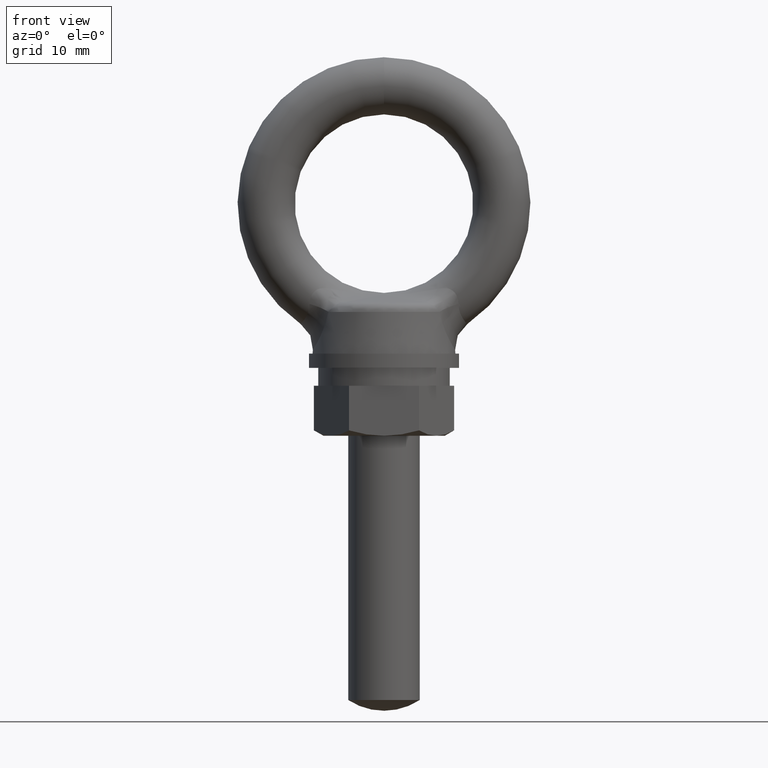
[diagram: clean part render]
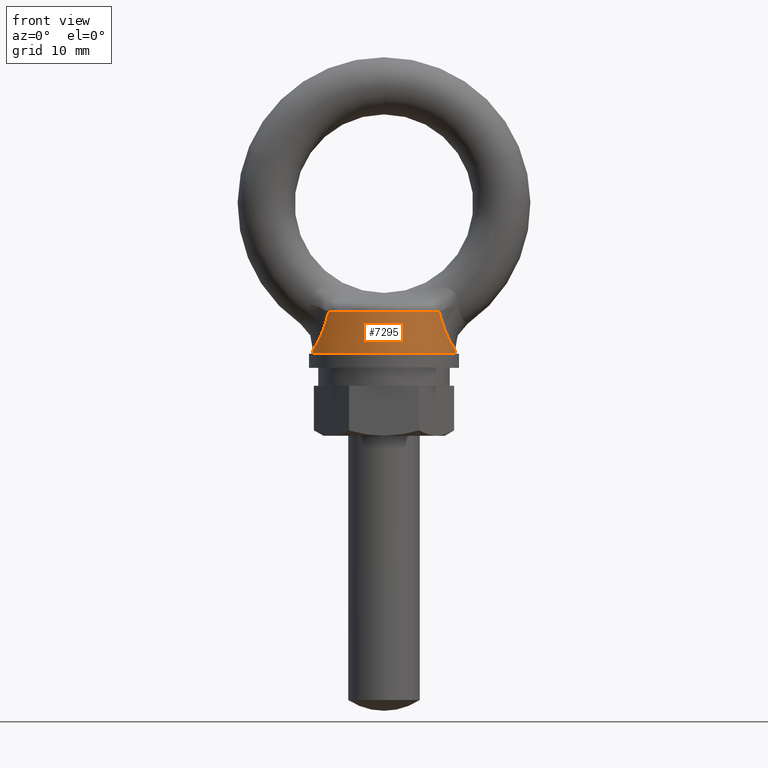
[diagram: same view with one face highlighted and labeled with its STEP entity id]
A machine part, front view. The second image highlights one B-rep face of the part: STEP entity #7295.
In plain terms, the highlighted conical surface has half-angle 5 deg.
Its self-contained STEP definition (entity closure, byte-faithful):
#2065 = CARTESIAN_POINT ( 'NONE',  ( -9.955885993554414200, -2.028742894275622300E-012, -20.49578796082059300 ) ) ;
#2066 = CARTESIAN_POINT ( 'NONE',  ( -9.955885993554327100, -0.3657275240793376200, -20.49578796082045100 ) ) ;
#2067 = CARTESIAN_POINT ( 'NONE',  ( -9.932544546647314100, -0.7244296777551357800, -20.45828552777055600 ) ) ;
#2068 = CARTESIAN_POINT ( 'NONE',  ( -9.865353101718785200, -1.252486508463236400, -20.34803947824609300 ) ) ;
#2069 = CARTESIAN_POINT ( 'NONE',  ( -9.837333292063071600, -1.427980581006030200, -20.30181331741691500 ) ) ;
#2070 = CARTESIAN_POINT ( 'NONE',  ( -9.771941598418415300, -1.769612213719068800, -20.19257703551616200 ) ) ;
#2173 = CARTESIAN_POINT ( 'NONE',  ( -7.924951897885458500, -5.331774767794621000, -15.86430205083240900 ) ) ;
#2174 = CARTESIAN_POINT ( 'NONE',  ( -7.837173701022173600, -5.405870336583355100, -15.51749412337730400 ) ) ;
#2176 = B_SPLINE_CURVE_WITH_KNOTS ( 'NONE', 3,
 ( #2189, #2174, #2173, #2226, #2225, #2224, #2223, #2222, #2221, #2220, #2219, #2218, #2217, #2216, #2215, #2214, #2070, #2069, #2068, #2067, #2066, #2065 ),
 .UNSPECIFIED., .F., .F.,
 ( 4, 2, 2, 2, 2, 2, 2, 2, 2, 2, 4 ),
 ( 0.0000000000000000000, 0.001092146086648861700, 0.002184292173297723400, 0.003276438259946585100, 0.004368584346595446800, 0.004914657389919877900, 0.005460730433244308100, 0.006552876519893175400, 0.007098949563217606500, 0.007645022606542037500, 0.008737168693190898800 ),
 .UNSPECIFIED. ) ;
#2189 = CARTESIAN_POINT ( 'NONE',  ( -7.760410120876260400, -5.461485613272089700, -15.16582361561554900 ) ) ;
#2214 = CARTESIAN_POINT ( 'NONE',  ( -9.734804380016205600, -1.935030454429257600, -20.12995872626705600 ) ) ;
#2215 = CARTESIAN_POINT ( 'NONE',  ( -9.611922188606127900, -2.416341255347066700, -19.91948627331188200 ) ) ;
#2216 = CARTESIAN_POINT ( 'NONE',  ( -9.514747698480519500, -2.717406389784828400, -19.74921834025179000 ) ) ;
#2217 = CARTESIAN_POINT ( 'NONE',  ( -9.351997443421655700, -3.141460765879729800, -19.44977693694196900 ) ) ;
#2218 = CARTESIAN_POINT ( 'NONE',  ( -9.294620810465218600, -3.278717372852791600, -19.34199790753970700 ) ) ;
#2219 = CARTESIAN_POINT ( 'NONE',  ( -9.177905272989097100, -3.538079861692929700, -19.11676631391539200 ) ) ;
#2220 = CARTESIAN_POINT ( 'NONE',  ( -9.118310566304362700, -3.660950575487504900, -18.99886489947441600 ) ) ;
#2221 = CARTESIAN_POINT ( 'NONE',  ( -8.937439847729324400, -4.010802158584025900, -18.62998075006827700 ) ) ;
#2222 = CARTESIAN_POINT ( 'NONE',  ( -8.814099166400556100, -4.219132670111715600, -18.36390273650750500 ) ) ;
#2223 = CARTESIAN_POINT ( 'NONE',  ( -8.569500128992782400, -4.591127687307208700, -17.79229638933241000 ) ) ;
#2224 = CARTESIAN_POINT ( 'NONE',  ( -8.448650898237595200, -4.753804588081175500, -17.48708771104530200 ) ) ;
#2225 = CARTESIAN_POINT ( 'NONE',  ( -8.223497949102352300, -5.029049508848709500, -16.85967545764327700 ) ) ;
#2226 = CARTESIAN_POINT ( 'NONE',  ( -8.118040680862566900, -5.143364533151506100, -16.53487376259072400 ) ) ;
#3484 = CARTESIAN_POINT ( 'NONE',  ( -7.760410120876260400, -5.461485613272089700, -15.16582361561554900 ) ) ;
#4707 = DIRECTION ( 'NONE',  ( 1.000000000000000000, 0.0000000000000000000, 0.0000000000000000000 ) ) ;
#4708 = DIRECTION ( 'NONE',  ( 0.0000000000000000000, 0.0000000000000000000, -1.000000000000000000 ) ) ;
#4709 = CARTESIAN_POINT ( 'NONE',  ( 0.0000000000000000000, 0.0000000000000000000, -15.16582361561554900 ) ) ;
#4710 = AXIS2_PLACEMENT_3D ( 'NONE', #4709, #4708, #4707 ) ;
#4711 = CIRCLE ( 'NONE', #4710, 9.489562178950970800 ) ;
#6238 = CARTESIAN_POINT ( 'NONE',  ( 8.935146831457398500, -4.015134655598919800, -18.62525502555936900 ) ) ;
#6239 = CARTESIAN_POINT ( 'NONE',  ( 9.179693954334842600, -3.542321241001758400, -19.12410464747375700 ) ) ;
#6240 = CARTESIAN_POINT ( 'NONE',  ( 9.296707669799948400, -3.284952945513295300, -19.34794736367198500 ) ) ;
#6241 = CARTESIAN_POINT ( 'NONE',  ( 9.511943043456110300, -2.725272241202753700, -19.74415914991467200 ) ) ;
#6242 = CARTESIAN_POINT ( 'NONE',  ( 9.610782753211859500, -2.420902231676887300, -19.91753953609090600 ) ) ;
#6243 = CARTESIAN_POINT ( 'NONE',  ( 9.777200841859619000, -1.768871823722089500, -20.20257043445539200 ) ) ;
#6244 = CARTESIAN_POINT ( 'NONE',  ( 9.842620695228824000, -1.429890596074381500, -20.31073325029626600 ) ) ;
#6245 = CARTESIAN_POINT ( 'NONE',  ( 9.909598342861130500, -0.9053784728590519300, -20.42063963923516200 ) ) ;
#6246 = CARTESIAN_POINT ( 'NONE',  ( 9.926770315475065900, -0.7276484838180348200, -20.44857143745197100 ) ) ;
#6247 = CARTESIAN_POINT ( 'NONE',  ( 9.949965243970382300, -0.3660831602386967500, -20.48622735366315000 ) ) ;
#6248 = CARTESIAN_POINT ( 'NONE',  ( 9.955885993554458600, -0.1824289259746165200, -20.49578796082066700 ) ) ;
#6249 = CARTESIAN_POINT ( 'NONE',  ( 9.955885993554414200, 2.030656532070525200E-012, -20.49578796082059300 ) ) ;
#6256 = CARTESIAN_POINT ( 'NONE',  ( 0.0000000000000000000, 0.0000000000000000000, -14.00000164107894200 ) ) ;
#6293 = DIRECTION ( 'NONE',  ( -1.000000000000000000, 0.0000000000000000000, 0.0000000000000000000 ) ) ;
#6294 = DIRECTION ( 'NONE',  ( 0.0000000000000000000, 0.0000000000000000000, -1.000000000000000000 ) ) ;
#6295 = CARTESIAN_POINT ( 'NONE',  ( 0.0000000000000000000, 0.0000000000000000000, -21.00000000000000000 ) ) ;
#6296 = AXIS2_PLACEMENT_3D ( 'NONE', #6295, #6294, #6293 ) ;
#6297 = CIRCLE ( 'NONE', #6296, 10.00000000000000000 ) ;
#6311 = CARTESIAN_POINT ( 'NONE',  ( -10.00000000000000000, 0.0000000000000000000, -21.00000000000000000 ) ) ;
#6329 = CARTESIAN_POINT ( 'NONE',  ( 10.00000000000000000, 1.224606353822377100E-015, -21.00000000000000000 ) ) ;
#6330 = DIRECTION ( 'NONE',  ( 0.08715803485720417800, 1.067342832728044500E-017, -0.9961944975554876100 ) ) ;
#6331 = VECTOR ( 'NONE', #6330, 1000.000000000000100 ) ;
#6332 = CARTESIAN_POINT ( 'NONE',  ( 9.387563269557979600, 1.149606962681027100E-015, -14.00000164107894200 ) ) ;
#6333 = LINE ( 'NONE', #6332, #6331 ) ;
#6337 = CARTESIAN_POINT ( 'NONE',  ( 7.760410120876260400, -5.461485613272089700, -15.16582361561554900 ) ) ;
#6338 = CARTESIAN_POINT ( 'NONE',  ( 7.913704483389681200, -5.350423722075756700, -15.86809813433437100 ) ) ;
#6339 = CARTESIAN_POINT ( 'NONE',  ( 8.108247238750781300, -5.169776252009127900, -16.53817346479218400 ) ) ;
#6340 = CARTESIAN_POINT ( 'NONE',  ( 8.448589367295010500, -4.753961759298617200, -17.48708710548955400 ) ) ;
#6341 = CARTESIAN_POINT ( 'NONE',  ( 8.568329162953711300, -4.592686322834911300, -17.78932410250962100 ) ) ;
#6342 = CARTESIAN_POINT ( 'NONE',  ( 8.811383033758465500, -4.223482147632422500, -18.35778747662589800 ) ) ;
#6375 = CARTESIAN_POINT ( 'NONE',  ( -9.955885993554414200, -2.028742894275622300E-012, -20.49578796082059300 ) ) ;
#6376 = DIRECTION ( 'NONE',  ( -0.08715803485720417800, 0.0000000000000000000, -0.9961944975554876100 ) ) ;
#6377 = VECTOR ( 'NONE', #6376, 1000.000000000000100 ) ;
#6378 = CARTESIAN_POINT ( 'NONE',  ( -9.387563269557979600, 0.0000000000000000000, -14.00000164107894200 ) ) ;
#6379 = LINE ( 'NONE', #6378, #6377 ) ;
#6410 = B_SPLINE_CURVE_WITH_KNOTS ( 'NONE', 3,
 ( #6249, #6248, #6247, #6246, #6245, #6244, #6243, #6242, #6241, #6240, #6239, #6238, #6342, #6341, #6340, #6339, #6338, #6337 ),
 .UNSPECIFIED., .F., .F.,
 ( 4, 2, 2, 2, 2, 2, 2, 2, 4 ),
 ( 0.008737168693190888400, 0.009281943216518354400, 0.009826717739845822200, 0.01091626678650075300, 0.01200581583315568500, 0.01309536487981061700, 0.01418491392646554900, 0.01527446297312048100, 0.01745356106643034700 ),
 .UNSPECIFIED. ) ;
#6411 = CARTESIAN_POINT ( 'NONE',  ( 7.760410120876260400, -5.461485613272089700, -15.16582361561554900 ) ) ;
#6412 = CARTESIAN_POINT ( 'NONE',  ( 9.955885993554414200, 2.030656532070525200E-012, -20.49578796082059300 ) ) ;
#6438 = FACE_OUTER_BOUND ( 'NONE', #7252, .T. ) ;
#6441 = DIRECTION ( 'NONE',  ( -1.000000000000000000, 0.0000000000000000000, 0.0000000000000000000 ) ) ;
#6442 = DIRECTION ( 'NONE',  ( 0.0000000000000000000, 0.0000000000000000000, -1.000000000000000000 ) ) ;
#6443 = AXIS2_PLACEMENT_3D ( 'NONE', #6256, #6442, #6441 ) ;
#6444 = CONICAL_SURFACE ( 'NONE', #6443, 9.387563269557979600, 0.08726876346498016500 ) ;
#7109 = ORIENTED_EDGE ( 'NONE', *, *, #7268, .T. ) ;
#7110 = ORIENTED_EDGE ( 'NONE', *, *, #7325, .F. ) ;
#7134 = EDGE_CURVE ( 'NONE', #7164, #7269, #2176, .T. ) ;
#7164 = VERTEX_POINT ( 'NONE', #3484 ) ;
#7200 = EDGE_CURVE ( 'NONE', #7264, #7164, #4711, .T. ) ;
#7201 = ORIENTED_EDGE ( 'NONE', *, *, #7134, .T. ) ;
#7252 = EDGE_LOOP ( 'NONE', ( #7296, #7262, #7265, #7201, #7109, #7110 ) ) ;
#7261 = VERTEX_POINT ( 'NONE', #6412 ) ;
#7262 = ORIENTED_EDGE ( 'NONE', *, *, #7263, .T. ) ;
#7263 = EDGE_CURVE ( 'NONE', #7261, #7264, #6410, .T. ) ;
#7264 = VERTEX_POINT ( 'NONE', #6411 ) ;
#7265 = ORIENTED_EDGE ( 'NONE', *, *, #7200, .T. ) ;
#7268 = EDGE_CURVE ( 'NONE', #7269, #7276, #6379, .T. ) ;
#7269 = VERTEX_POINT ( 'NONE', #6375 ) ;
#7274 = EDGE_CURVE ( 'NONE', #7261, #7275, #6333, .T. ) ;
#7275 = VERTEX_POINT ( 'NONE', #6329 ) ;
#7276 = VERTEX_POINT ( 'NONE', #6311 ) ;
#7295 = ADVANCED_FACE ( 'NONE', ( #6438 ), #6444, .T. ) ;
#7296 = ORIENTED_EDGE ( 'NONE', *, *, #7274, .F. ) ;
#7325 = EDGE_CURVE ( 'NONE', #7275, #7276, #6297, .T. ) ;